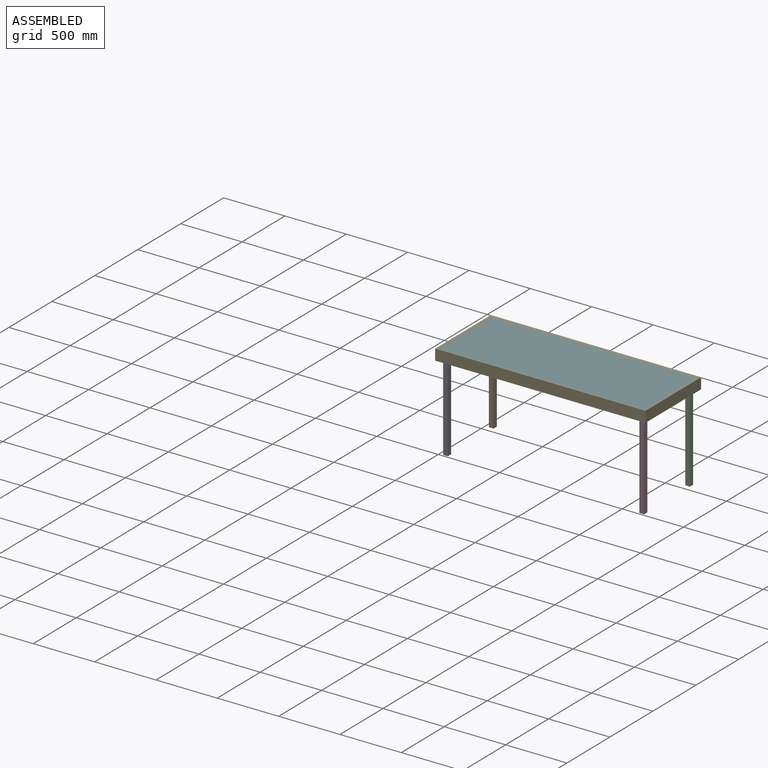
[diagram: assembled view]
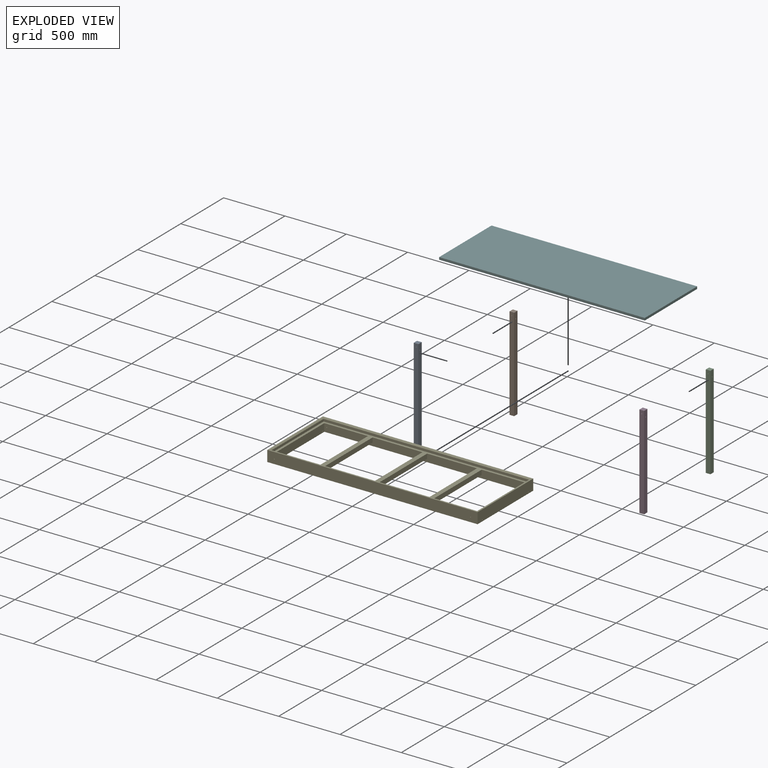
[diagram: exploded view]
GUIDED TOUR — MATED ASSEMBLY (Onshape document e04ed1af191d93187d11b528, AutoMate assembly e04ed1af191d93187d11b528_f52666154d746e7d207a4c29_aca66f3d68a6a1927e584b05_default)

This assembly has 6 components, labeled P0..P5 below (a component is one placed occurrence of a part; the same part can appear more than once), held together by 11 mates. A mate is a constraint between two components; its type names the relative motion it leaves free:
  CYLINDRICAL — leaves both rotation about and translation along the listed axis free,
  PARALLEL — keeps the two listed directions parallel,
  SLIDER — leaves translation along the listed axis free.
Axis/direction vectors are unit vectors and 'through' points are millimeter coordinates, both in the assembly's world frame.

MATES
  1. SLIDER "Slider 1": P3 <-> P4, axis (0.000, -1.000, 0.000) through (686.74, -539.16, 561.38) mm
  2. CYLINDRICAL "Cylindrical 2": P2 <-> P4, axis (1.000, 0.000, 0.000) through (705.79, 13.29, 535.98) mm
  3. CYLINDRICAL "Cylindrical 7": P4 <-> P2, axis (0.000, -1.000, 0.000) through (686.74, 32.34, 561.38) mm
  4. CYLINDRICAL "Cylindrical 5": P1 <-> P4, axis (0.000, 1.000, 0.000) through (-913.46, 32.34, 561.38) mm
  5. PARALLEL "Parallel 2": P4 <-> P5, direction (-1.000, 0.000, 0.000) through (724.84, -253.41, 596.31) mm
  6. CYLINDRICAL "Cylindrical 4": P0 <-> P4, axis (-1.000, 0.000, 0.000) through (-932.51, -520.11, 535.98) mm
  7. PARALLEL "Parallel 1": P5 <-> P4, direction (0.000, -1.000, 0.000) through (-113.36, -558.21, 596.31) mm
  8. CYLINDRICAL "Cylindrical 1": P3 <-> P4, axis (-1.000, 0.000, 0.000) through (667.69, -520.11, 535.98) mm
  9. CYLINDRICAL "Cylindrical 6": P4 <-> P1, axis (1.000, 0.000, 0.000) through (-932.51, 13.29, 535.98) mm
  10. PARALLEL "Parallel 3": P4 <-> P5, direction (0.000, 0.000, 1.000) through (-113.36, -253.41, 586.78) mm
  11. CYLINDRICAL "Cylindrical 3": P0 <-> P4, axis (0.000, 1.000, 0.000) through (-913.46, -501.06, 561.38) mm

ASSEMBLY ORDER
  1. P3 — the base component [order verified]
  2. P0 [order verified]
  3. P1 [order verified]
  4. P2 [order verified]
  5. P4 [order verified]
  6. P5 [order verified]
(P5 verified with a relaxed clearance tolerance: the source model stores slight part interference there.)
Order-tag legend:
  [order verified] — this step's position reverses a verified removal order: the component was checked to insert without passing through the ones already placed.

Of the 6 components, 6 carry the full construction recipe — the FeatureScript program that regenerates the part's solid from scratch; the rest are supplied as boundary geometry only.
Each toured component is shown spotlighted twice — in the assembled view, then in the exploded view, where a leader line traces a displaced component back to its assembled socket (saturated green if recipe-attached, orange if geometry-only; every other component desaturated gray) — followed by its recipe or geometry summary and the mates that hold it.
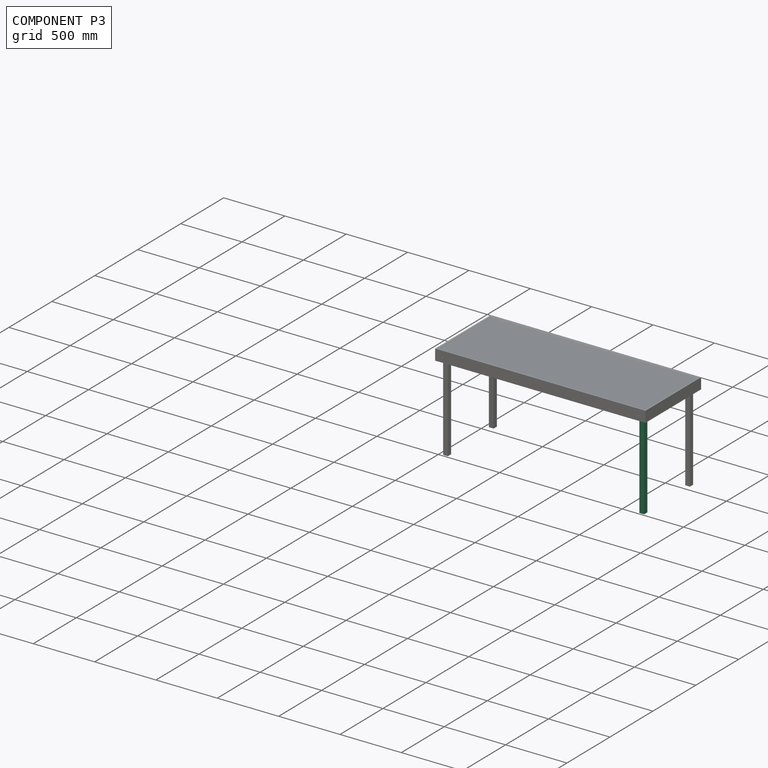
[diagram: component P3 — assembled]
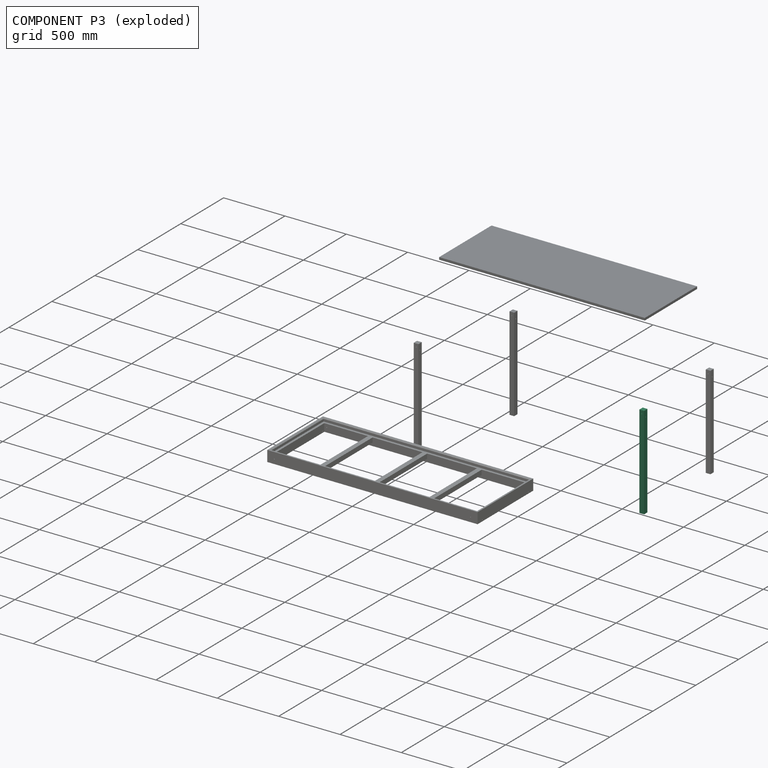
[diagram: component P3 — exploded]
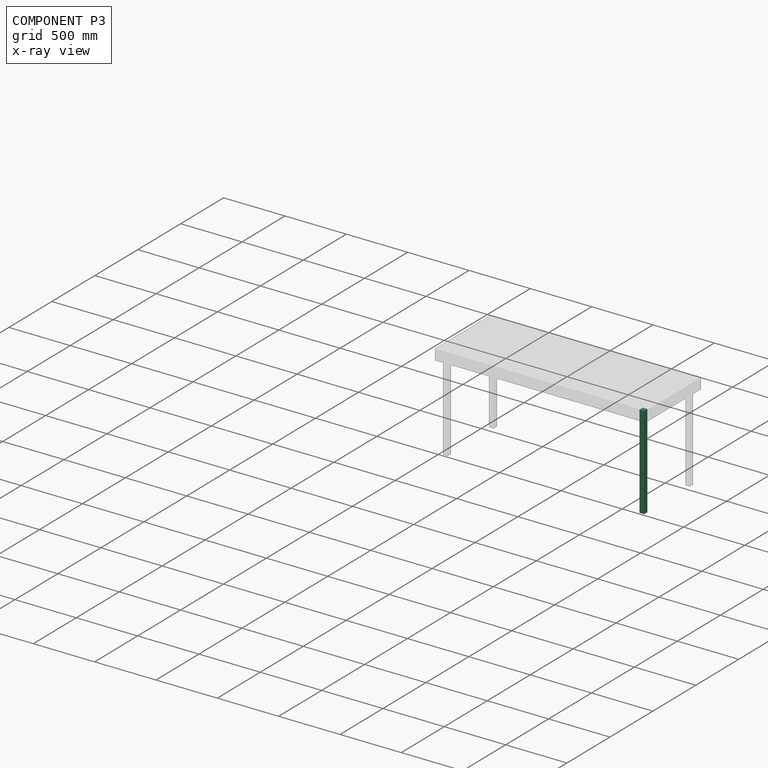
[diagram: component P3 — x-ray view]
COMPONENT P3 — same part as P0 (CADFS 00677994); its construction recipe is shown at P0.
Held by: SLIDER mate "Slider 1" to P4; CYLINDRICAL mate "Cylindrical 1" to P4.
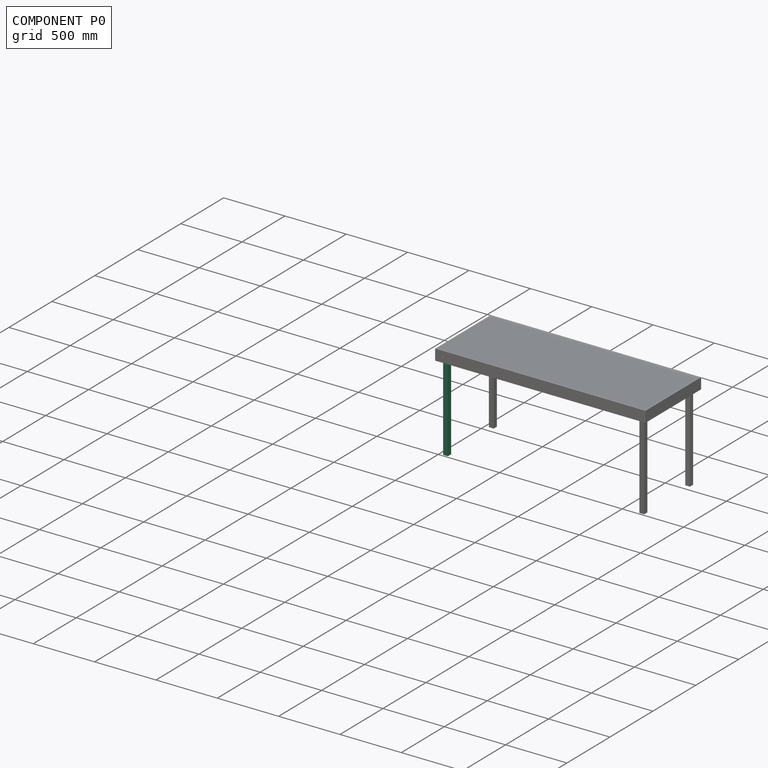
[diagram: component P0 — assembled]
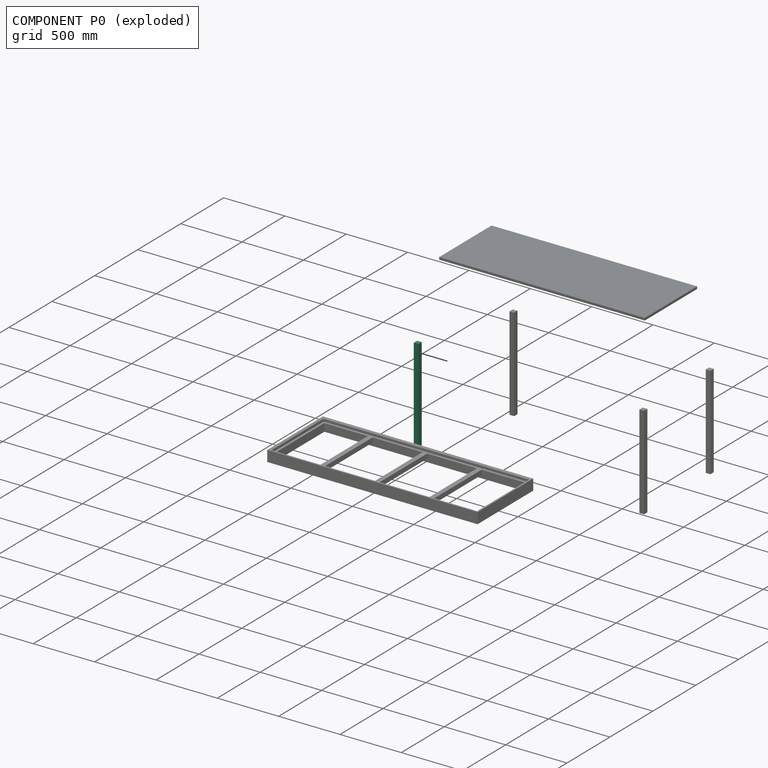
[diagram: component P0 — exploded]
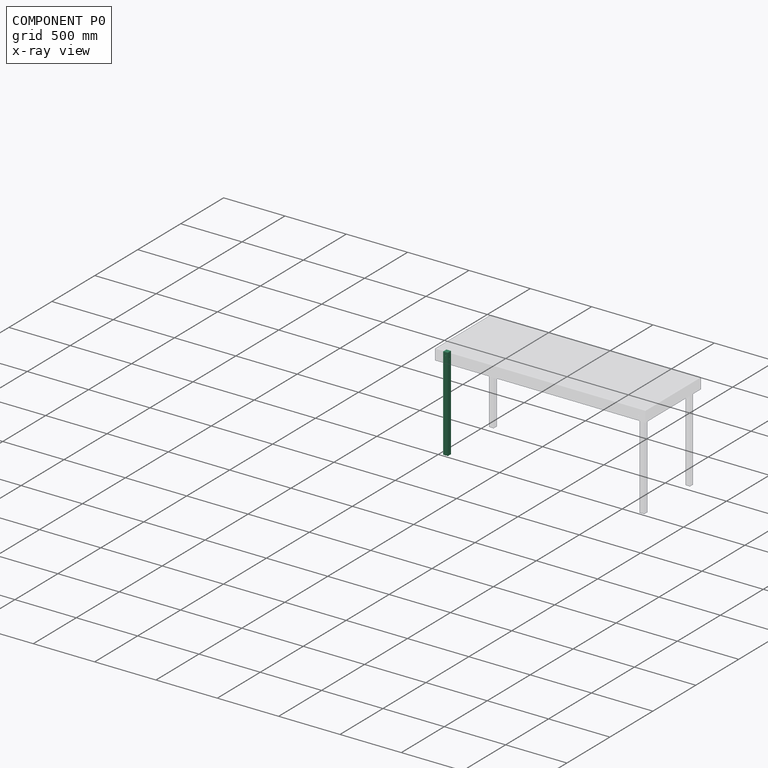
[diagram: component P0 — x-ray view]
COMPONENT P0 — recipe-attached (CADFS 00677994, mesh-verified: the recipe's output STEP matches this component's geometry to below the mesh-comparison resolution (tessellation chordal tolerance ~1.15 mm)).
Held by: CYLINDRICAL mate "Cylindrical 4" to P4; CYLINDRICAL mate "Cylindrical 3" to P4.
Construction recipe (FeatureScript — the CAD program that rebuilds this solid; sketch coordinates are in the units given by the * unit suffixes, e.g. mm):

FeatureScript 1511;
import(path : "onshape/std/geometry.fs", version : "1511.0");
import(path : "onshape/std/common.fs", version : "1511.0");
const mm = millimeter;
const VERTEX = EntityType.VERTEX;
const EDGE = EntityType.EDGE;
const FACE = EntityType.FACE;
const BODY = EntityType.BODY;
function v(x, y){return vector(x, y);}
function OD(order){return orderDisambiguation(order);}
function OSD(set){return originalSetDisambiguation(set);}
function TD(topology){return topologyDisambiguation(topology);}
function TDD(query){return trueDependencyDisambiguation(query);}
function sQuery(a, b, c) {return sketchEntityQuery(a, b, c);}

annotation { "Feature Type Name" : "Feature", "Feature Type Description" : "" }
export const myFeature = defineFeature(function(context is Context, id is Id, definition is map)
    precondition{}
    {
        {
            var Q0;
            Q0=qCreatedBy(makeId("Top.planeOp"),FACE);
            var sketch = newSketch(context, id + "F0", { "sketchPlane" : qUnion([Q0])});
            skLineSegment(sketch, "E0.bottom", {"start": v(19.05, 19.05) * mm, "end": v(-19.05, 19.05) * mm});
            skLineSegment(sketch, "E0.top", {"start": v(19.05, -19.05) * mm, "end": v(-19.05, -19.05) * mm});
            skLineSegment(sketch, "E0.left", {"start": v(19.05, 19.05) * mm, "end": v(19.05, -19.05) * mm});
            skLineSegment(sketch, "E0.right", {"start": v(-19.05, 19.05) * mm, "end": v(-19.05, -19.05) * mm});
            skPoint(sketch, "E0.middle", {"position": v(0, 0) * mm});
            skSolve(sketch);
        }
        {
            var Q0;
            Q0 = qSketchRegion(id + "F0", true);
            extrude(context, id + "F1", {"entities" : qUnion([Q0]), "oppositeDirection" : true, "depth" : 762 * mm, "offsetDistance" : 25.4 * mm});
        }
        {
            var Q0;
            Q0=makeQuery(id+"F1.opExtrude","SWEPT_FACE",FACE,{"disambiguationData":[OSD([sQuery(id+"F0.wireOp",EDGE,"E0.top")])]});
            var sketch = newSketch(context, id + "F2", { "sketchPlane" : qUnion([Q0])});
            skCircle(sketch, "E1", {"center": v(0, -25.4) * mm, "radius": 3.18 * mm});
            skSolve(sketch);
        }
        {
            var Q0;
            Q0 = qSketchRegion(id + "F2", true);
            extrude(context, id + "F3", {"entities" : qUnion([Q0]), "operationType" : NewBodyOperationType.REMOVE, "endBound" : BoundingType.THROUGH_ALL, "oppositeDirection" : true, "depth" : 25.4 * mm, "offsetDistance" : 25.4 * mm});
        }
        {
            var Q0;
            Q0=makeQuery(id+"F1.opExtrude","SWEPT_FACE",FACE,{"disambiguationData":[OSD([sQuery(id+"F0.wireOp",EDGE,"E0.left")])]});
            var sketch = newSketch(context, id + "F4", { "sketchPlane" : qUnion([Q0])});
            skCircle(sketch, "E2", {"center": v(0, -50.8) * mm, "radius": 3.18 * mm});
            skSolve(sketch);
        }
        {
            var Q0;
            Q0 = qSketchRegion(id + "F4", true);
            extrude(context, id + "F5", {"entities" : qUnion([Q0]), "operationType" : NewBodyOperationType.REMOVE, "endBound" : BoundingType.THROUGH_ALL, "oppositeDirection" : true, "depth" : 25.4 * mm, "offsetDistance" : 25.4 * mm});
        }
    });
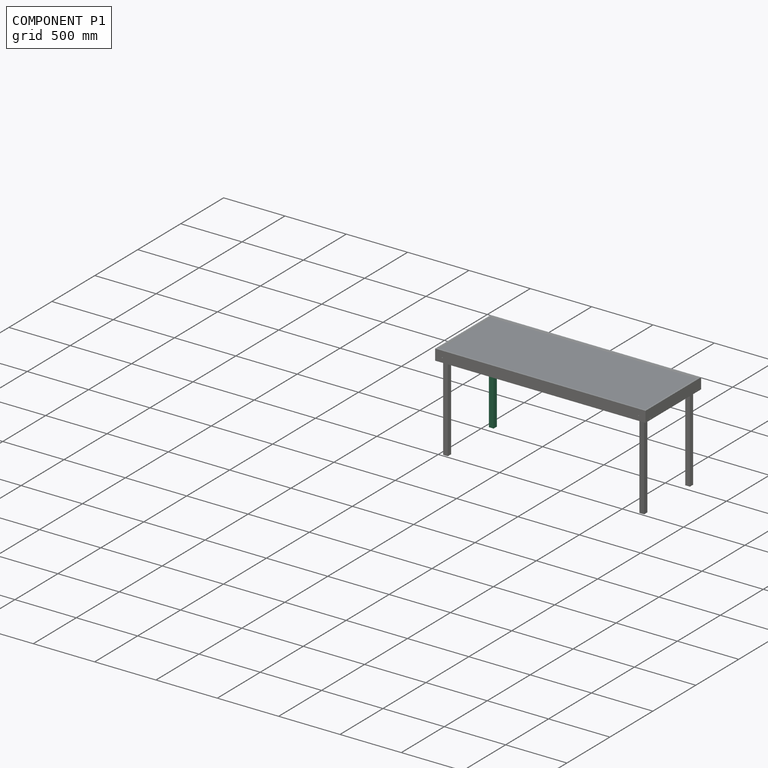
[diagram: component P1 — assembled]
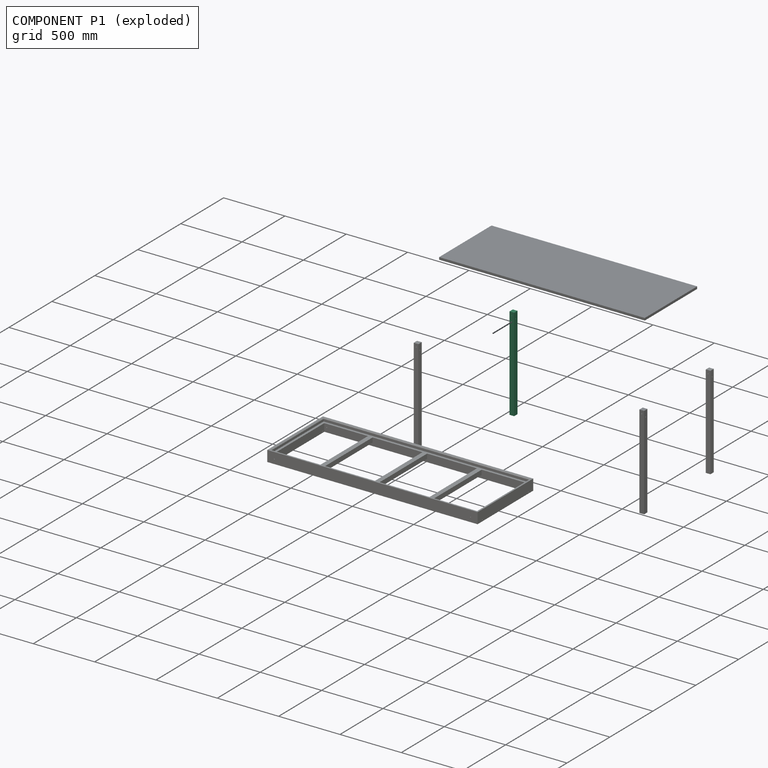
[diagram: component P1 — exploded]
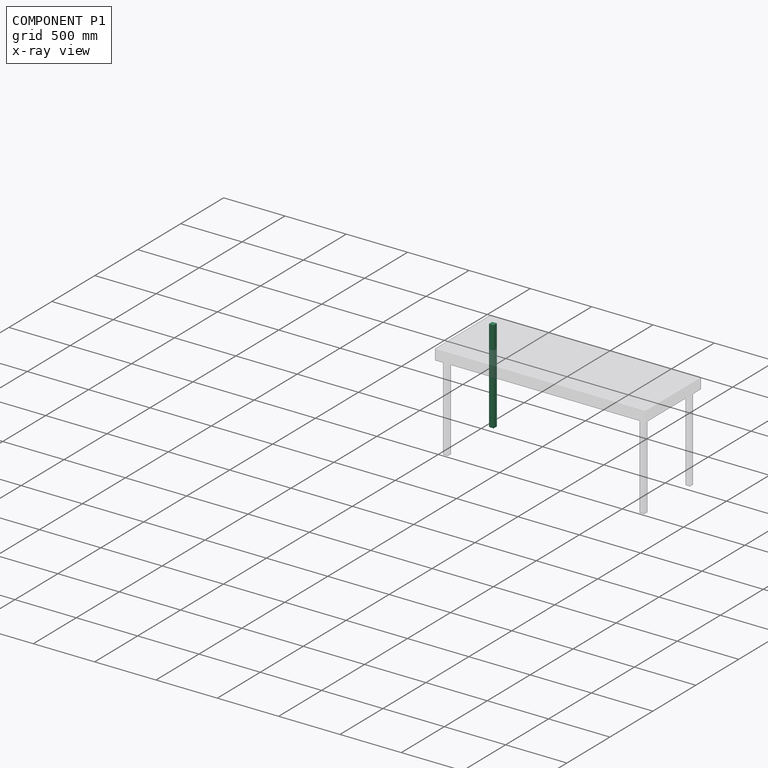
[diagram: component P1 — x-ray view]
COMPONENT P1 — same part as P0 (CADFS 00677994); its construction recipe is shown at P0.
Held by: CYLINDRICAL mate "Cylindrical 5" to P4; CYLINDRICAL mate "Cylindrical 6" to P4.
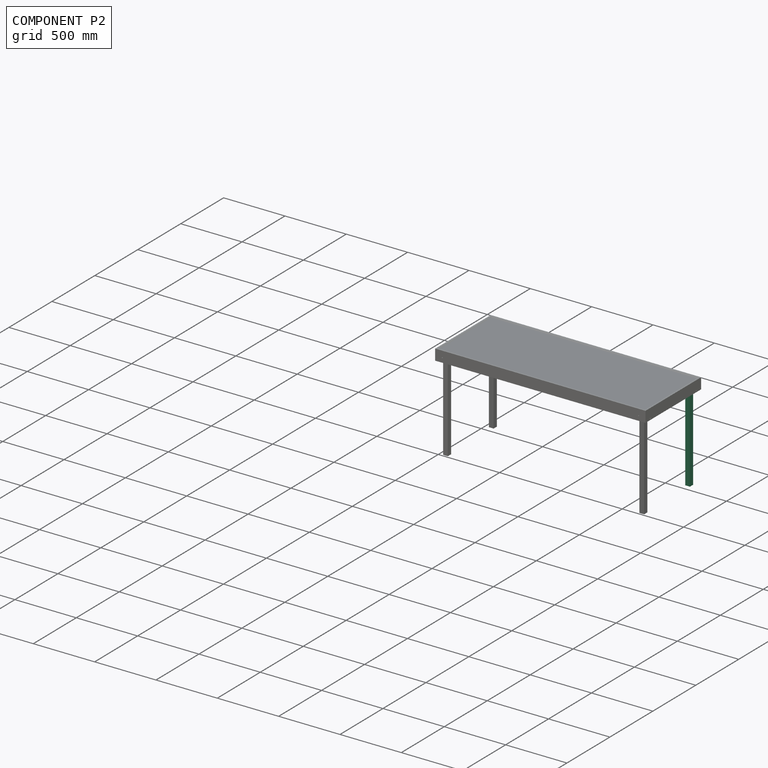
[diagram: component P2 — assembled]
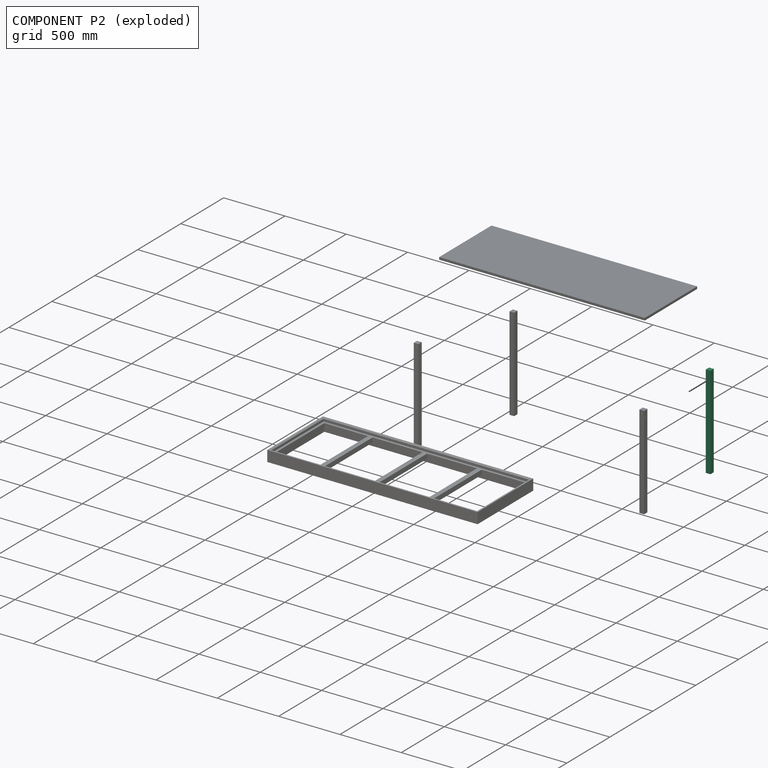
[diagram: component P2 — exploded]
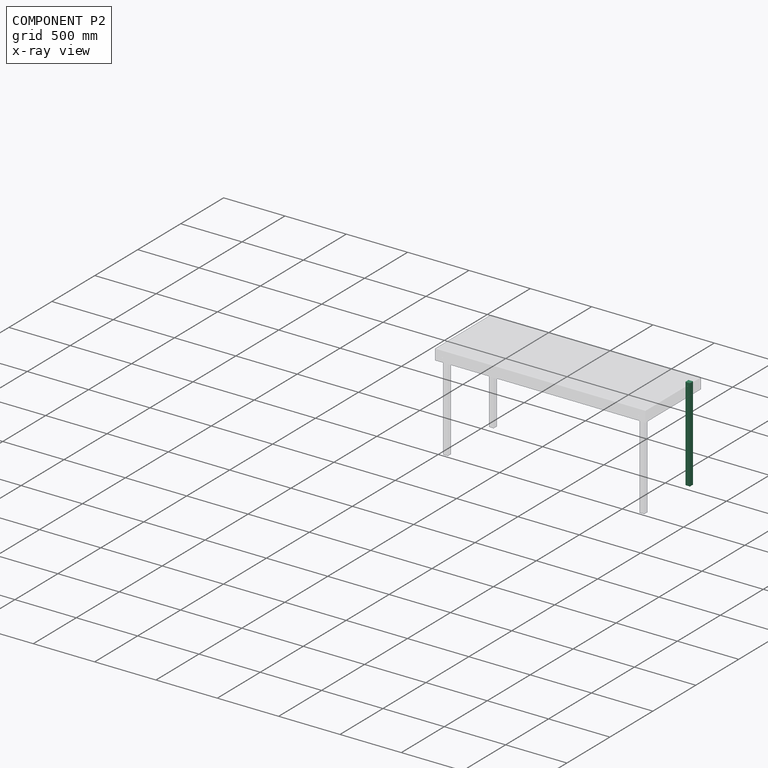
[diagram: component P2 — x-ray view]
COMPONENT P2 — same part as P0 (CADFS 00677994); its construction recipe is shown at P0.
Held by: CYLINDRICAL mate "Cylindrical 2" to P4; CYLINDRICAL mate "Cylindrical 7" to P4.
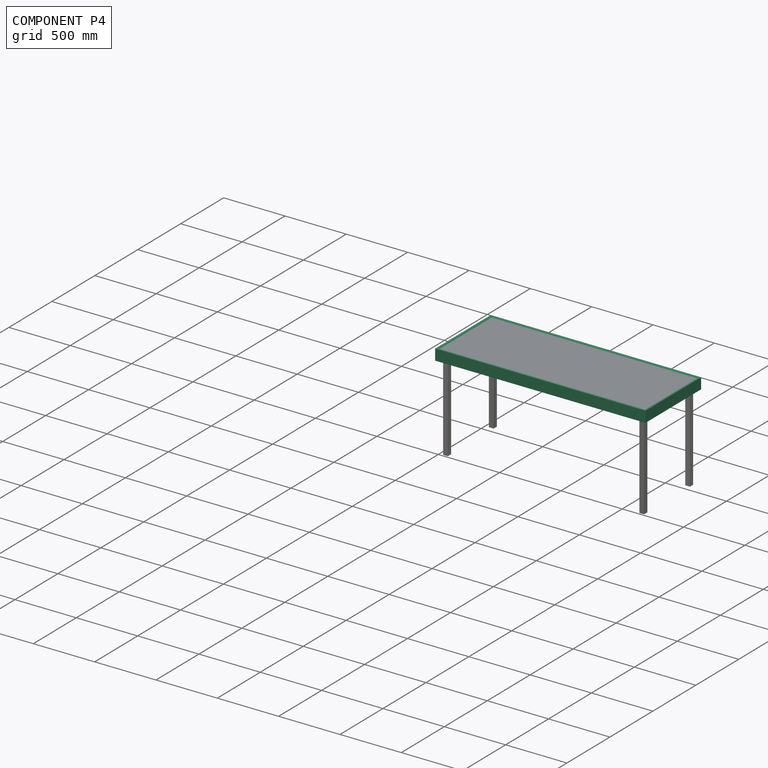
[diagram: component P4 — assembled]
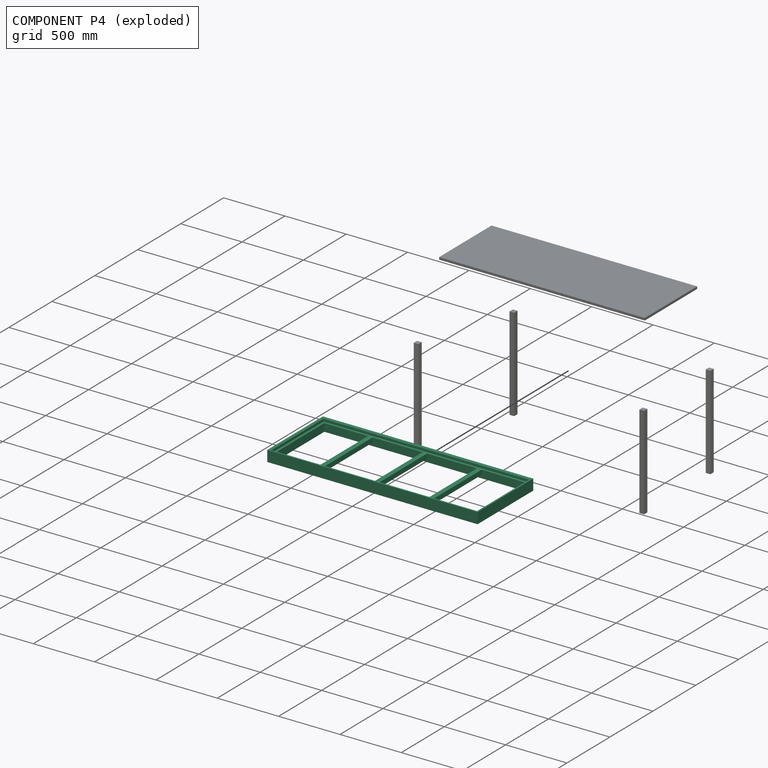
[diagram: component P4 — exploded]
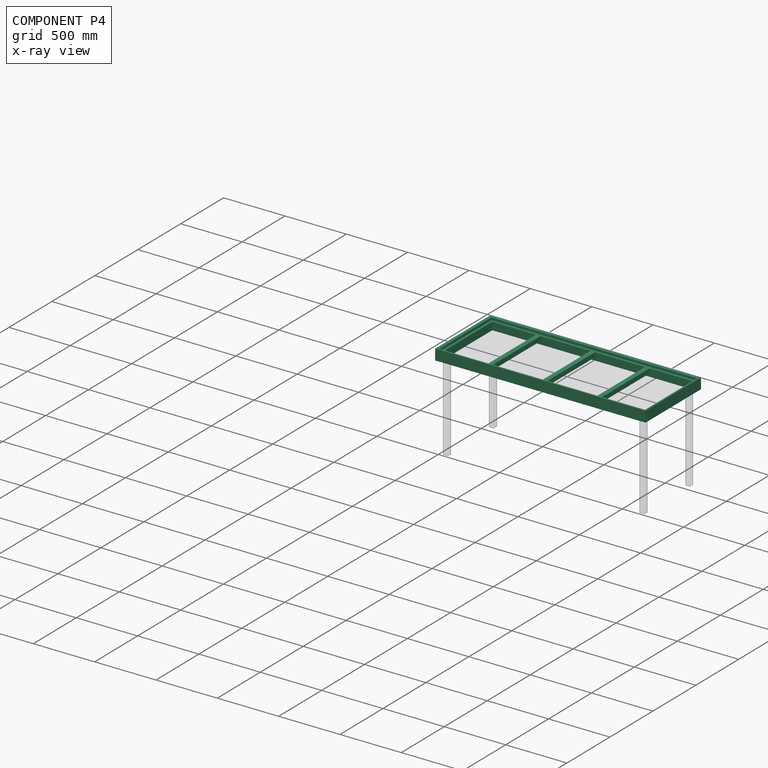
[diagram: component P4 — x-ray view]
COMPONENT P4 — recipe-attached (CADFS 00678025, mesh-verified: the recipe's output STEP matches this component's geometry to below the mesh-comparison resolution (tessellation chordal tolerance ~2.75 mm)).
Held by: SLIDER mate "Slider 1" to P3; CYLINDRICAL mate "Cylindrical 2" to P2; CYLINDRICAL mate "Cylindrical 7" to P2; CYLINDRICAL mate "Cylindrical 5" to P1; PARALLEL mate "Parallel 2" to P5; CYLINDRICAL mate "Cylindrical 4" to P0; PARALLEL mate "Parallel 1" to P5; CYLINDRICAL mate "Cylindrical 1" to P3; CYLINDRICAL mate "Cylindrical 6" to P1; PARALLEL mate "Parallel 3" to P5; CYLINDRICAL mate "Cylindrical 3" to P0.
Construction recipe (FeatureScript — the CAD program that rebuilds this solid; sketch coordinates are in the units given by the * unit suffixes, e.g. mm):

FeatureScript 1511;
import(path : "onshape/std/geometry.fs", version : "1511.0");
import(path : "onshape/std/common.fs", version : "1511.0");
const mm = millimeter;
const VERTEX = EntityType.VERTEX;
const EDGE = EntityType.EDGE;
const FACE = EntityType.FACE;
const BODY = EntityType.BODY;
function v(x, y){return vector(x, y);}
function OD(order){return orderDisambiguation(order);}
function OSD(set){return originalSetDisambiguation(set);}
function TD(topology){return topologyDisambiguation(topology);}
function TDD(query){return trueDependencyDisambiguation(query);}
function sQuery(a, b, c) {return sketchEntityQuery(a, b, c);}

annotation { "Feature Type Name" : "Feature", "Feature Type Description" : "" }
export const myFeature = defineFeature(function(context is Context, id is Id, definition is map)
    precondition{}
    {
        {
            var Q0;
            Q0=qCreatedBy(makeId("Top.planeOp"),FACE);
            var sketch = newSketch(context, id + "F0", { "sketchPlane" : qUnion([Q0])});
            skLineSegment(sketch, "E0.bottom", {"start": v(857.25, 323.85) * mm, "end": v(-857.25, 323.85) * mm});
            skLineSegment(sketch, "E0.top", {"start": v(857.25, -323.85) * mm, "end": v(-857.25, -323.85) * mm});
            skLineSegment(sketch, "E0.left", {"start": v(857.25, 323.85) * mm, "end": v(857.25, -323.85) * mm});
            skLineSegment(sketch, "E0.right", {"start": v(-857.25, 323.85) * mm, "end": v(-857.25, -323.85) * mm});
            skPoint(sketch, "E0.middle", {"position": v(0, 0) * mm});
            skLineSegment(sketch, "E1.bottom", {"start": v(838.2, 304.8) * mm, "end": v(-838.2, 304.8) * mm});
            skLineSegment(sketch, "E1.top", {"start": v(838.2, -304.8) * mm, "end": v(-838.2, -304.8) * mm});
            skLineSegment(sketch, "E1.left", {"start": v(838.2, 304.8) * mm, "end": v(838.2, -304.8) * mm});
            skLineSegment(sketch, "E1.right", {"start": v(-838.2, 304.8) * mm, "end": v(-838.2, -304.8) * mm});
            skSolve(sketch);
        }
        {
            var Q0;
            Q0 = qSketchRegion(id + "F0", true);
            extrude(context, id + "F1", {"entities" : qUnion([Q0]), "depth" : 88.9 * mm, "offsetDistance" : 25.4 * mm});
        }
        {
            var Q0;
            Q0=makeQuery(id+"F1.opExtrude","CAP_FACE",FACE,{"disambiguationData":[OSD([sQuery(id+"F0.wireOp",EDGE,"E0.bottom"),sQuery(id+"F0.wireOp",EDGE,"E0.top"),sQuery(id+"F0.wireOp",EDGE,"E0.left"),sQuery(id+"F0.wireOp",EDGE,"E0.right"),sQuery(id+"F0.wireOp",EDGE,"E1.bottom"),sQuery(id+"F0.wireOp",EDGE,"E1.top"),sQuery(id+"F0.wireOp",EDGE,"E1.left"),sQuery(id+"F0.wireOp",EDGE,"E1.right")])],"isStart":true});
            var sketch = newSketch(context, id + "F2", { "sketchPlane" : qUnion([Q0])});
            skLineSegment(sketch, "E2.bottom", {"start": v(-838.2, -304.8) * mm, "end": v(838.2, -304.8) * mm});
            skLineSegment(sketch, "E2.top", {"start": v(-838.2, 304.8) * mm, "end": v(838.2, 304.8) * mm});
            skLineSegment(sketch, "E2.left", {"start": v(-838.2, -304.8) * mm, "end": v(-838.2, 304.8) * mm});
            skLineSegment(sketch, "E2.right", {"start": v(838.2, -304.8) * mm, "end": v(838.2, 304.8) * mm});
            skPoint(sketch, "E2.middle", {"position": v(0, 0) * mm});
            skLineSegment(sketch, "E3.bottom", {"start": v(-819.15, -285.75) * mm, "end": v(819.15, -285.75) * mm});
            skLineSegment(sketch, "E3.top", {"start": v(-819.15, 285.75) * mm, "end": v(819.15, 285.75) * mm});
            skLineSegment(sketch, "E3.left", {"start": v(-819.15, -285.75) * mm, "end": v(-819.15, 285.75) * mm});
            skLineSegment(sketch, "E3.right", {"start": v(819.15, -285.75) * mm, "end": v(819.15, 285.75) * mm});
            skSolve(sketch);
        }
        {
            var Q0;
            Q0 = qSketchRegion(id + "F2", true);
            extrude(context, id + "F3", {"entities" : qUnion([Q0]), "operationType" : NewBodyOperationType.ADD, "oppositeDirection" : true, "depth" : 63.5 * mm, "offsetDistance" : 25.4 * mm});
        }
        {
            var Q0;
            Q0=makeQuery(id+"F3.opExtrude","CAP_FACE",FACE,{"disambiguationData":[OSD([sQuery(id+"F2.wireOp",EDGE,"E2.bottom"),sQuery(id+"F2.wireOp",EDGE,"E2.top"),sQuery(id+"F2.wireOp",EDGE,"E2.left"),sQuery(id+"F2.wireOp",EDGE,"E2.right"),sQuery(id+"F2.wireOp",EDGE,"E3.bottom"),sQuery(id+"F2.wireOp",EDGE,"E3.top"),sQuery(id+"F2.wireOp",EDGE,"E3.left"),sQuery(id+"F2.wireOp",EDGE,"E3.right")])],"isStart":false});
            var sketch = newSketch(context, id + "F4", { "sketchPlane" : qUnion([Q0])});
            skLineSegment(sketch, "E4.bottom", {"start": v(-19.05, 285.75) * mm, "end": v(19.05, 285.75) * mm});
            skLineSegment(sketch, "E4.top", {"start": v(-19.05, -285.75) * mm, "end": v(19.05, -285.75) * mm});
            skLineSegment(sketch, "E4.left", {"start": v(-19.05, 285.75) * mm, "end": v(-19.05, -285.75) * mm});
            skLineSegment(sketch, "E4.right", {"start": v(19.05, 285.75) * mm, "end": v(19.05, -285.75) * mm});
            skLineSegment(sketch, "E5.bottom", {"start": v(425.45, 285.75) * mm, "end": v(463.55, 285.75) * mm});
            skLineSegment(sketch, "E5.top", {"start": v(425.45, -285.75) * mm, "end": v(463.55, -285.75) * mm});
            skLineSegment(sketch, "E5.left", {"start": v(425.45, 285.75) * mm, "end": v(425.45, -285.75) * mm});
            skLineSegment(sketch, "E5.right", {"start": v(463.55, 285.75) * mm, "end": v(463.55, -285.75) * mm});
            skLineSegment(sketch, "E6.bottom", {"start": v(-463.55, 285.75) * mm, "end": v(-425.45, 285.75) * mm});
            skLineSegment(sketch, "E6.top", {"start": v(-463.55, -285.75) * mm, "end": v(-425.45, -285.75) * mm});
            skLineSegment(sketch, "E6.left", {"start": v(-463.55, 285.75) * mm, "end": v(-463.55, -285.75) * mm});
            skLineSegment(sketch, "E6.right", {"start": v(-425.45, 285.75) * mm, "end": v(-425.45, -285.75) * mm});
            skSolve(sketch);
        }
        {
            var Q0;
            Q0 = qSketchRegion(id + "F4", true);
            extrude(context, id + "F5", {"entities" : qUnion([Q0]), "operationType" : NewBodyOperationType.ADD, "oppositeDirection" : true, "depth" : 38.1 * mm, "offsetDistance" : 25.4 * mm});
        }
        {
            var Q0;
            Q0=makeQuery(id+"F1.opExtrude","SWEPT_FACE",FACE,{"disambiguationData":[OSD([sQuery(id+"F0.wireOp",EDGE,"E0.top")])]});
            var sketch = newSketch(context, id + "F6", { "sketchPlane" : qUnion([Q0])});
            skCircle(sketch, "E7", {"center": v(-800.1, 38.1) * mm, "radius": 3.18 * mm});
            skCircle(sketch, "E8", {"center": v(800.1, 38.1) * mm, "radius": 3.18 * mm});
            skSolve(sketch);
        }
        {
            var Q0;
            Q0 = qSketchRegion(id + "F6", true);
            extrude(context, id + "F7", {"entities" : qUnion([Q0]), "operationType" : NewBodyOperationType.REMOVE, "endBound" : BoundingType.THROUGH_ALL, "oppositeDirection" : true, "depth" : 25.4 * mm, "offsetDistance" : 25.4 * mm});
        }
        {
            var Q0;
            Q0=makeQuery(id+"F1.opExtrude","SWEPT_FACE",FACE,{"disambiguationData":[OSD([sQuery(id+"F0.wireOp",EDGE,"E0.right")])]});
            var sketch = newSketch(context, id + "F8", { "sketchPlane" : qUnion([Q0])});
            skCircle(sketch, "E9", {"center": v(-266.7, 12.7) * mm, "radius": 3.18 * mm});
            skCircle(sketch, "E10", {"center": v(266.7, 12.7) * mm, "radius": 3.18 * mm});
            skSolve(sketch);
        }
        {
            var Q0;
            Q0 = qSketchRegion(id + "F8", true);
            extrude(context, id + "F9", {"entities" : qUnion([Q0]), "operationType" : NewBodyOperationType.REMOVE, "oppositeDirection" : true, "depth" : 50.8 * mm, "offsetDistance" : 25.4 * mm});
        }
        {
            var Q0;
            Q0=makeQuery(id+"F1.opExtrude","SWEPT_FACE",FACE,{"disambiguationData":[OSD([sQuery(id+"F0.wireOp",EDGE,"E0.left")])]});
            var sketch = newSketch(context, id + "F10", { "sketchPlane" : qUnion([Q0])});
            skCircle(sketch, "E11", {"center": v(-266.7, 12.7) * mm, "radius": 3.18 * mm});
            skCircle(sketch, "E12", {"center": v(266.7, 12.7) * mm, "radius": 3.18 * mm});
            skSolve(sketch);
        }
        {
            var Q0;
            Q0 = qSketchRegion(id + "F10", true);
            extrude(context, id + "F11", {"entities" : qUnion([Q0]), "operationType" : NewBodyOperationType.REMOVE, "oppositeDirection" : true, "depth" : 50.8 * mm, "offsetDistance" : 25.4 * mm});
        }
        {
            var Q0;
            Q0=makeQuery(id+"F1.opExtrude","CAP_EDGE",EDGE,{"disambiguationData":[OSD([sQuery(id+"F0.wireOp",EDGE,"E1.bottom")])],"isStart":false});
            var Q1;
            Q1=makeQuery(id+"F1.opExtrude","CAP_EDGE",EDGE,{"disambiguationData":[OSD([sQuery(id+"F0.wireOp",EDGE,"E1.left")])],"isStart":false});
            var Q2;
            Q2=makeQuery(id+"F1.opExtrude","CAP_EDGE",EDGE,{"disambiguationData":[OSD([sQuery(id+"F0.wireOp",EDGE,"E1.right")])],"isStart":false});
            var Q3;
            Q3=makeQuery(id+"F1.opExtrude","CAP_EDGE",EDGE,{"disambiguationData":[OSD([sQuery(id+"F0.wireOp",EDGE,"E1.top")])],"isStart":false});
            chamfer(context, id + "F12", {"entities" : qUnion([Q0, Q1, Q2, Q3]), "width" : 6.35 * mm, "tangentPropagation" : true});
        }
    });
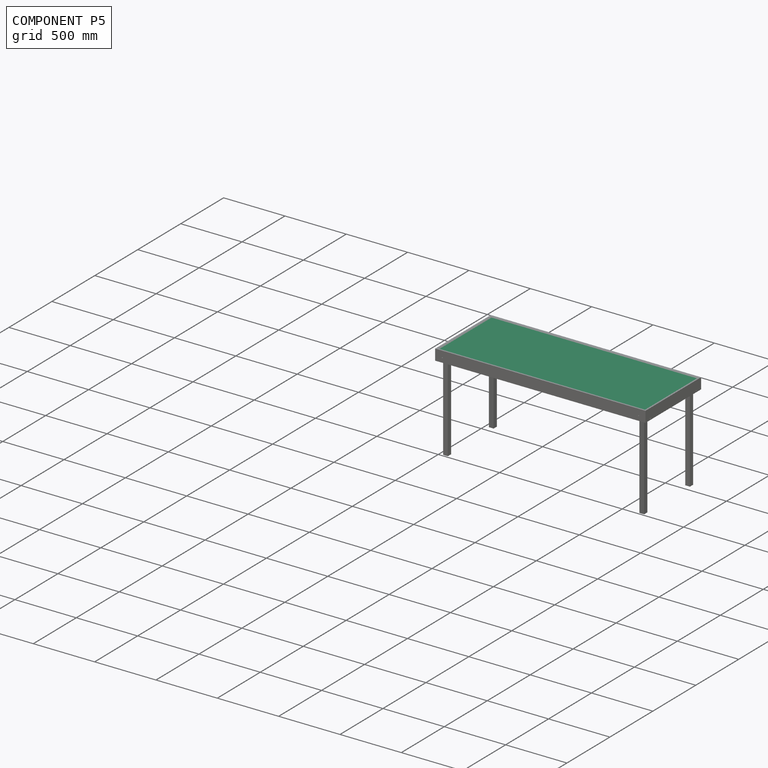
[diagram: component P5 — assembled]
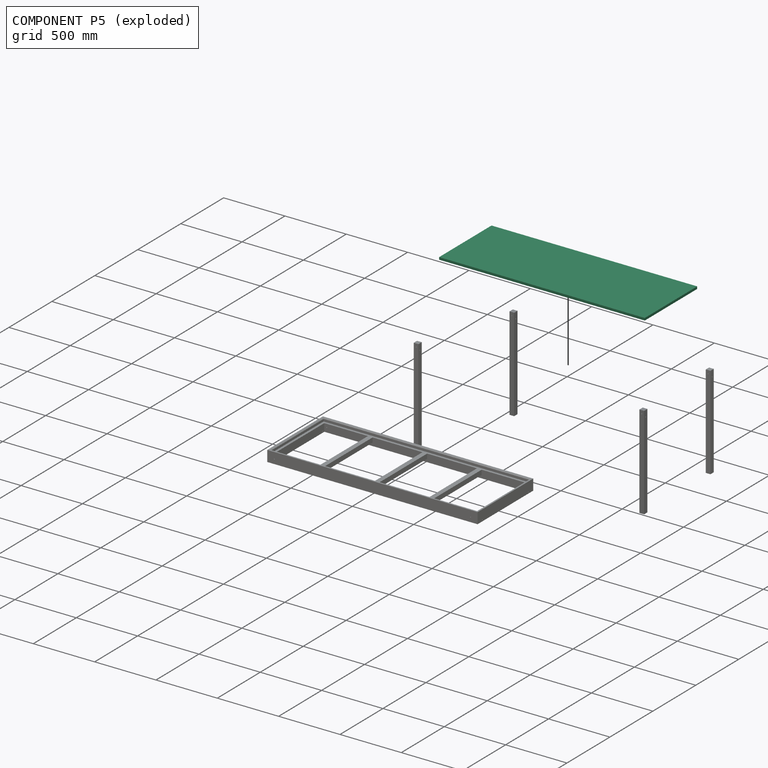
[diagram: component P5 — exploded]
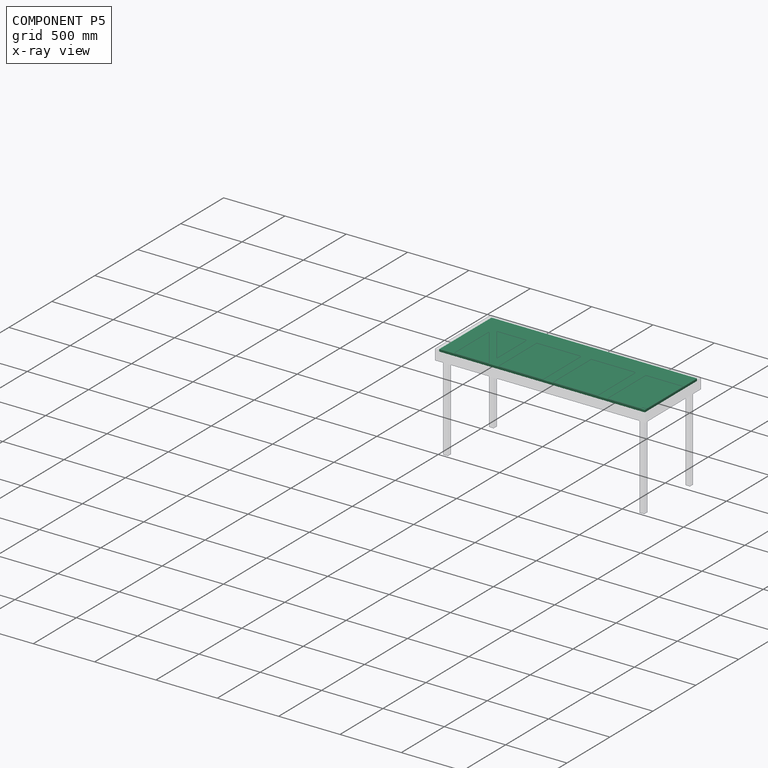
[diagram: component P5 — x-ray view]
COMPONENT P5 — recipe-attached (CADFS 00678093, mesh-verified: the recipe's output STEP matches this component's geometry to below the mesh-comparison resolution (tessellation chordal tolerance ~2.68 mm)).
Held by: PARALLEL mate "Parallel 2" to P4; PARALLEL mate "Parallel 1" to P4; PARALLEL mate "Parallel 3" to P4.
Construction recipe (FeatureScript — the CAD program that rebuilds this solid; sketch coordinates are in the units given by the * unit suffixes, e.g. mm):

FeatureScript 1511;
import(path : "onshape/std/geometry.fs", version : "1511.0");
import(path : "onshape/std/common.fs", version : "1511.0");
const mm = millimeter;
const VERTEX = EntityType.VERTEX;
const EDGE = EntityType.EDGE;
const FACE = EntityType.FACE;
const BODY = EntityType.BODY;
function v(x, y){return vector(x, y);}
function OD(order){return orderDisambiguation(order);}
function OSD(set){return originalSetDisambiguation(set);}
function TD(topology){return topologyDisambiguation(topology);}
function TDD(query){return trueDependencyDisambiguation(query);}
function sQuery(a, b, c) {return sketchEntityQuery(a, b, c);}

annotation { "Feature Type Name" : "Feature", "Feature Type Description" : "" }
export const myFeature = defineFeature(function(context is Context, id is Id, definition is map)
    precondition{}
    {
        {
            var Q0;
            Q0=qCreatedBy(makeId("Top.planeOp"),FACE);
            var sketch = newSketch(context, id + "F0", { "sketchPlane" : qUnion([Q0])});
            skLineSegment(sketch, "E0.bottom", {"start": v(838.2, 304.8) * mm, "end": v(-838.2, 304.8) * mm});
            skLineSegment(sketch, "E0.top", {"start": v(838.2, -304.8) * mm, "end": v(-838.2, -304.8) * mm});
            skLineSegment(sketch, "E0.left", {"start": v(838.2, 304.8) * mm, "end": v(838.2, -304.8) * mm});
            skLineSegment(sketch, "E0.right", {"start": v(-838.2, 304.8) * mm, "end": v(-838.2, -304.8) * mm});
            skPoint(sketch, "E0.middle", {"position": v(0, 0) * mm});
            skSolve(sketch);
        }
        {
            var Q0;
            Q0=makeQuery(id+"F0.imprint","IMPRINT",FACE,{"disambiguationData":[TD([[makeQuery(id+"F0.imprint","IMPRINT",EDGE,{"derivedFrom":sQuery(id+"F0.wireOp",EDGE,"E0.bottom")}),1.0]])]});
            extrude(context, id + "F1", {"entities" : qUnion([Q0]), "depth" : 19.05 * mm, "offsetDistance" : 25.4 * mm});
        }
    });
PROVENANCE & LICENSES
Assembly (occurrences, transforms, mates, per-part STEP geometry): AutoMate dataset, Zenodo record 7776208, CC0.
Construction recipes: CADFS (HuggingFace VladPyatov/CADFS, CC-BY-4.0, layered over the ABC dataset), FeatureScript reconstruction programs keyed by ABC model id.
Join: ABC meta listings map ABC model id -> Onshape documentId; within a shared document, parts are matched by geometric signature (bounding-box dims + volume at 0.1% relative tolerance, exact B-rep face/solid counts).
Verification: 6 of this assembly's 6 components carry a recipe attachment, and every attachment is mesh-verified: the CADFS STEP and the AutoMate member STEP were compared as meshes in their shared local frame (symmetric sampled-point-to-mesh distance); worst across the 6 attachments: below the mesh-comparison resolution (tessellation chordal tolerance ~2.75 mm) on a 1835 mm part.
Renders: orthographic iso camera (az 35 / el 25); the floor grid conveys scale (grid pitch printed in each image; no ruler). In the exploded view each component is displaced by its stored offset vector: the offsets alone carry the explosion direction (mate normal/axis signs are not orientation cues and do not encode it), and separation distances are assigned per mate-chain, not proportionally to assembly-order depth.
